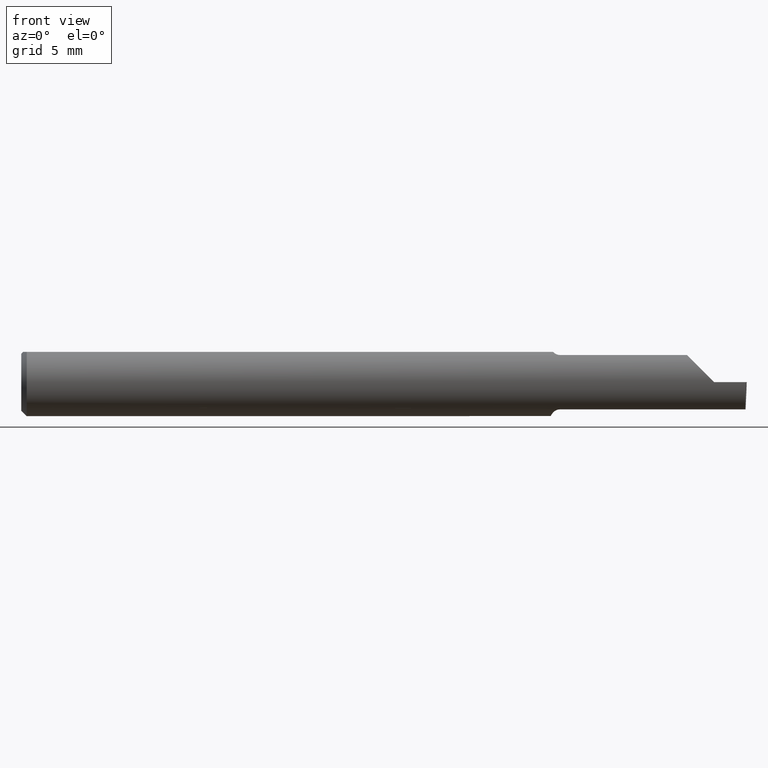
[diagram: clean part render]
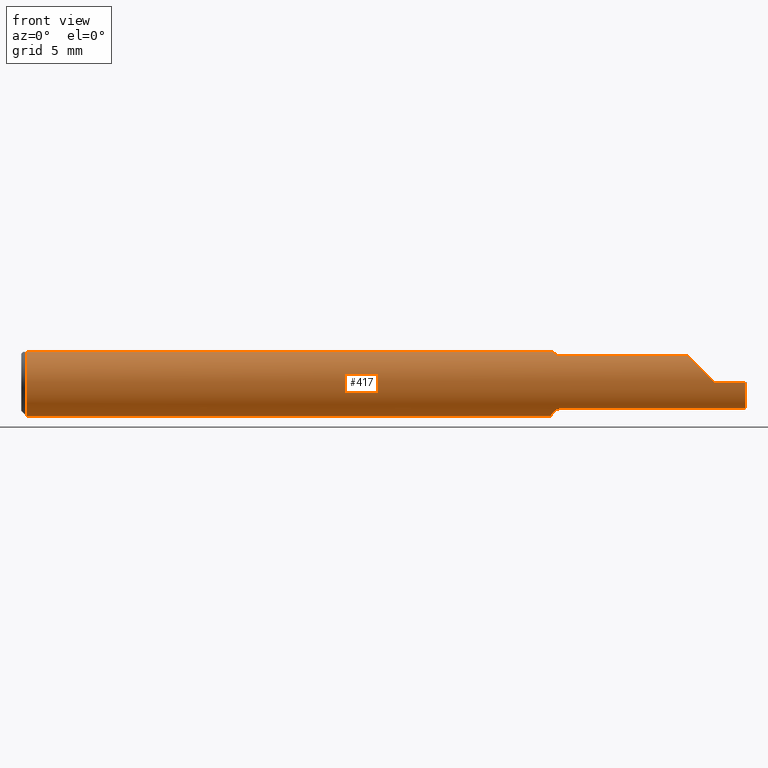
[diagram: same view with one face highlighted and labeled with its STEP entity id]
A machine part, front view. The second image highlights one B-rep face of the part: STEP entity #417.
In plain terms, the highlighted cylindrical surface (edge-blend (fillet) strip) has radius 2.3774 mm, axis along (-1, -0, -0).
Its self-contained STEP definition (entity closure, byte-faithful):
#11 = ORIENTED_EDGE ( 'NONE', *, *, #529, .T. ) ;
#13 = CARTESIAN_POINT ( 'NONE',  ( 1.476446782524424073, -0.05558685324519236498, -0.07531605361338915283 ) ) ;
#16 = CARTESIAN_POINT ( 'NONE',  ( 1.994172072281005237, -0.09355431490906530867, -0.09996576130738771271 ) ) ;
#18 = CARTESIAN_POINT ( 'NONE',  ( 1.880893035518783396, -0.09359999999999998876, 0.02910696448121669402 ) ) ;
#26 = CARTESIAN_POINT ( 'NONE',  ( 1.996788249052547259, -0.09359999022555408332, -4.277588313355801215E-05 ) ) ;
#27 = DIRECTION ( 'NONE',  ( 0.000000000000000000, 0.000000000000000000, -1.000000000000000000 ) ) ;
#36 = CARTESIAN_POINT ( 'NONE',  ( 1.459999999999999742, 0.000000000000000000, 0.000000000000000000 ) ) ;
#39 = ORIENTED_EDGE ( 'NONE', *, *, #58, .T. ) ;
#41 = DIRECTION ( 'NONE',  ( -1.000000000000000000, -0.000000000000000000, -0.000000000000000000 ) ) ;
#46 = CARTESIAN_POINT ( 'NONE',  ( 1.466129652885479251, -0.04209513035970094408, 0.08359999999999999376 ) ) ;
#49 = EDGE_LOOP ( 'NONE', ( #403, #678, #11, #39, #145, #701, #641, #569, #92, #541, #409, #363, #353, #490, #369 ) ) ;
#51 = VERTEX_POINT ( 'NONE', #735 ) ;
#58 = EDGE_CURVE ( 'NONE', #77, #149, #388, .T. ) ;
#74 = CARTESIAN_POINT ( 'NONE',  ( 1.474728336617688651, -0.05428341532129050961, -0.07627162539867091140 ) ) ;
#76 = CARTESIAN_POINT ( 'NONE',  ( 1.482653034764491728, -0.05810704225352129881, -0.07337936794867812307 ) ) ;
#77 = VERTEX_POINT ( 'NONE', #742 ) ;
#79 = CARTESIAN_POINT ( 'NONE',  ( 0.000000000000000000, 0.000000000000000000, 0.000000000000000000 ) ) ;
#85 = CARTESIAN_POINT ( 'NONE',  ( 1.459999999999999742, -0.006757276995305157297, -0.09335576686851604356 ) ) ;
#88 = DIRECTION ( 'NONE',  ( -1.000000000000000000, -0.000000000000000000, -0.000000000000000000 ) ) ;
#92 = ORIENTED_EDGE ( 'NONE', *, *, #511, .F. ) ;
#94 = CARTESIAN_POINT ( 'NONE',  ( 1.484999999999999876, -0.05810704225352111146, -0.07337936794867824797 ) ) ;
#111 = CARTESIAN_POINT ( 'NONE',  ( 1.996789369178486373, -0.09359999999634724399, 1.965990811775635199E-19 ) ) ;
#123 = VECTOR ( 'NONE', #155, 39.37007874015748143 ) ;
#136 = CARTESIAN_POINT ( 'NONE',  ( 1.468086474849918499, -0.04638796853538176834, -0.08140770120152256151 ) ) ;
#145 = ORIENTED_EDGE ( 'NONE', *, *, #427, .F. ) ;
#149 = VERTEX_POINT ( 'NONE', #265 ) ;
#153 = CARTESIAN_POINT ( 'NONE',  ( 2.999519565323743132E-32, -0.09359999999999998876, 2.449293598294717754E-16 ) ) ;
#155 = DIRECTION ( 'NONE',  ( 1.000000000000000000, 0.000000000000000000, 0.000000000000000000 ) ) ;
#156 = CARTESIAN_POINT ( 'NONE',  ( 0.01499999999999999944, 0.000000000000000000, -0.09359999999999998876 ) ) ;
#159 = DIRECTION ( 'NONE',  ( 1.000000000000000000, 0.000000000000000000, 0.000000000000000000 ) ) ;
#161 = VECTOR ( 'NONE', #159, 39.37007874015748143 ) ;
#163 = CARTESIAN_POINT ( 'NONE',  ( 1.466129652885479251, -0.04209513035970094408, 0.08359999999999999376 ) ) ;
#167 = CARTESIAN_POINT ( 'NONE',  ( 1.463953896433696000, -0.03733827064844358334, -0.08603332211978831356 ) ) ;
#177 = CARTESIAN_POINT ( 'NONE',  ( 1.484999999999999876, -0.05810704225352113922, 0.07337936794867823409 ) ) ;
#182 = CARTESIAN_POINT ( 'NONE',  ( 1.729749999999999677, -0.05810704225352113922, -0.07337936794867823409 ) ) ;
#191 = CARTESIAN_POINT ( 'NONE',  ( 0.01499999999999999598, 0.04209513035969836975, 0.08359999999999999376 ) ) ;
#193 = VERTEX_POINT ( 'NONE', #26 ) ;
#214 = CIRCLE ( 'NONE', #714, 0.09359999999999998876 ) ;
#222 = LINE ( 'NONE', #767, #161 ) ;
#230 = EDGE_CURVE ( 'NONE', #51, #551, #396, .T. ) ;
#232 = CARTESIAN_POINT ( 'NONE',  ( 1.474746577633804234, -0.05429945193459817521, 0.07626038032150797563 ) ) ;
#233 = VERTEX_POINT ( 'NONE', #94 ) ;
#235 = CARTESIAN_POINT ( 'NONE',  ( 1.466356684838558522, -0.04259999999999997816, 0.08334386600104415344 ) ) ;
#238 = CARTESIAN_POINT ( 'NONE',  ( 1.466204482410374155, -0.04226411763296330365, 0.08351490979309549034 ) ) ;
#240 = AXIS2_PLACEMENT_3D ( 'NONE', #650, #88, #336 ) ;
#241 = CARTESIAN_POINT ( 'NONE',  ( 1.466280153739604630, -0.04243240890922537339, 0.08342952773968856373 ) ) ;
#258 = DIRECTION ( 'NONE',  ( 0.02617296143184117893, -0.0004568507411563393905, 0.9996573249755575929 ) ) ;
#260 = CIRCLE ( 'NONE', #362, 0.09359999999999998876 ) ;
#263 = CARTESIAN_POINT ( 'NONE',  ( 1.995486889784650053, -0.05810704225352113922, -0.07337936794867823409 ) ) ;
#265 = CARTESIAN_POINT ( 'NONE',  ( 1.836620632051322310, -0.05810704225352133351, 0.07337936794867813695 ) ) ;
#273 = CARTESIAN_POINT ( 'NONE',  ( 1.466356684838558522, -0.04259999999999997816, 0.08334386600104415344 ) ) ;
#281 = LINE ( 'NONE', #153, #550 ) ;
#282 = VERTEX_POINT ( 'NONE', #536 ) ;
#295 = VERTEX_POINT ( 'NONE', #191 ) ;
#297 = CARTESIAN_POINT ( 'NONE',  ( 1.460436655799339123, -0.01945041057485635827, -0.09177104786119411051 ) ) ;
#309 = CARTESIAN_POINT ( 'NONE',  ( 1.466356684838558522, -0.04259999999999997122, -0.08334386600104412568 ) ) ;
#313 = AXIS2_PLACEMENT_3D ( 'NONE', #79, #326, #572 ) ;
#318 = LINE ( 'NONE', #16, #337 ) ;
#322 = VERTEX_POINT ( 'NONE', #309 ) ;
#326 = DIRECTION ( 'NONE',  ( -1.000000000000000000, -0.000000000000000000, -0.000000000000000000 ) ) ;
#336 = DIRECTION ( 'NONE',  ( 0.000000000000000000, 0.000000000000000000, 1.000000000000000000 ) ) ;
#337 = VECTOR ( 'NONE', #258, 39.37007874015748854 ) ;
#353 = ORIENTED_EDGE ( 'NONE', *, *, #673, .F. ) ;
#355 = CARTESIAN_POINT ( 'NONE',  ( 1.470259025420519228, -0.04992838138009422083, 0.07925011723318650669 ) ) ;
#358 = CARTESIAN_POINT ( 'NONE',  ( 1.466356684838558522, -0.04259999999999997122, -0.08334386600104412568 ) ) ;
#361 = CARTESIAN_POINT ( 'NONE',  ( 1.468098441794898346, -0.04641417426599063478, 0.08139430652501544738 ) ) ;
#362 = AXIS2_PLACEMENT_3D ( 'NONE', #644, #405, #582 ) ;
#363 = ORIENTED_EDGE ( 'NONE', *, *, #534, .F. ) ;
#369 = ORIENTED_EDGE ( 'NONE', *, *, #674, .F. ) ;
#388 =( BOUNDED_CURVE ( )  B_SPLINE_CURVE ( 3, ( #611, #18, #622, #428 ),
 .UNSPECIFIED., .F., .T. ) 
 B_SPLINE_CURVE_WITH_KNOTS ( ( 4, 4 ),
 ( 4.712388980384689674, 5.613420356061716632 ),
 .UNSPECIFIED. ) 
 CURVE ( )  GEOMETRIC_REPRESENTATION_ITEM ( )  RATIONAL_B_SPLINE_CURVE ( ( 1.000000000000000000, 0.9334817841311877640, 0.9334817841311877640, 1.000000000000000000 ) ) 
 REPRESENTATION_ITEM ( '' )  );
#391 = DIRECTION ( 'NONE',  ( 1.000000000000000000, 0.000000000000000000, 0.000000000000000000 ) ) ;
#392 = EDGE_CURVE ( 'NONE', #233, #322, #665, .T. ) ;
#395 = EDGE_CURVE ( 'NONE', #193, #613, #318, .T. ) ;
#396 = LINE ( 'NONE', #695, #123 ) ;
#403 = ORIENTED_EDGE ( 'NONE', *, *, #653, .T. ) ;
#405 = DIRECTION ( 'NONE',  ( -1.000000000000000000, -0.000000000000000000, -0.000000000000000000 ) ) ;
#406 = VERTEX_POINT ( 'NONE', #743 ) ;
#408 = CARTESIAN_POINT ( 'NONE',  ( 1.459999999999999742, -0.006757276995305157297, -0.09335576686851604356 ) ) ;
#409 = ORIENTED_EDGE ( 'NONE', *, *, #453, .F. ) ;
#412 = VERTEX_POINT ( 'NONE', #263 ) ;
#417 = ADVANCED_FACE ( 'NONE', ( #505 ), #684, .T. ) ;
#419 = DIRECTION ( 'NONE',  ( -1.000000000000000000, -0.000000000000000000, -0.000000000000000000 ) ) ;
#427 = EDGE_CURVE ( 'NONE', #406, #149, #222, .T. ) ;
#428 = CARTESIAN_POINT ( 'NONE',  ( 1.836620632051322310, -0.05810704225352133351, 0.07337936794867813695 ) ) ;
#434 = VERTEX_POINT ( 'NONE', #273 ) ;
#441 = VERTEX_POINT ( 'NONE', #85 ) ;
#450 = B_SPLINE_CURVE_WITH_KNOTS ( 'NONE', 3,
 ( #46, #238, #241, #235 ),
 .UNSPECIFIED., .F., .F.,
 ( 4, 4 ),
 ( 4.741820243502701581E-07, 1.584523690453573094E-05 ),
 .UNSPECIFIED. ) ;
#453 = EDGE_CURVE ( 'NONE', #282, #295, #460, .T. ) ;
#460 = LINE ( 'NONE', #516, #616 ) ;
#464 = DIRECTION ( 'NONE',  ( -1.000000000000000000, -0.000000000000000000, -0.000000000000000000 ) ) ;
#471 = VERTEX_POINT ( 'NONE', #156 ) ;
#473 = CARTESIAN_POINT ( 'NONE',  ( 1.996788249052547259, -0.09359999022555408332, -4.277588313355801215E-05 ) ) ;
#475 =( BOUNDED_CURVE ( )  B_SPLINE_CURVE ( 3, ( #527, #771, #711, #473 ),
 .UNSPECIFIED., .F., .F. ) 
 B_SPLINE_CURVE_WITH_KNOTS ( ( 4, 4 ),
 ( 0.08204942185700607460, 0.9826237902196914842 ),
 .UNSPECIFIED. ) 
 CURVE ( )  GEOMETRIC_REPRESENTATION_ITEM ( )  RATIONAL_B_SPLINE_CURVE ( ( 1.000000000000000000, 0.9335481000009943076, 0.9335481000009943076, 1.000000000000000000 ) ) 
 REPRESENTATION_ITEM ( '' )  );
#490 = ORIENTED_EDGE ( 'NONE', *, *, #392, .F. ) ;
#497 = CARTESIAN_POINT ( 'NONE',  ( 1.470264545693809488, -0.04993027844100268037, -0.07924826417278514612 ) ) ;
#505 = FACE_OUTER_BOUND ( 'NONE', #49, .T. ) ;
#511 = EDGE_CURVE ( 'NONE', #471, #51, #260, .T. ) ;
#516 = CARTESIAN_POINT ( 'NONE',  ( 0.000000000000000000, 0.04209513035969836975, 0.08359999999999999376 ) ) ;
#524 = B_SPLINE_CURVE_WITH_KNOTS ( 'NONE', 3,
 ( #358, #167, #598, #297, #539, #408 ),
 .UNSPECIFIED., .F., .F.,
 ( 4, 2, 4 ),
 ( 0.0007041963409106363411, 0.001193146413573859584, 0.001682096486237082827 ),
 .UNSPECIFIED. ) ;
#527 = CARTESIAN_POINT ( 'NONE',  ( 1.995486889784650053, -0.05810704225352113922, -0.07337936794867823409 ) ) ;
#529 = EDGE_CURVE ( 'NONE', #613, #77, #281, .T. ) ;
#534 = EDGE_CURVE ( 'NONE', #441, #282, #214, .T. ) ;
#536 = CARTESIAN_POINT ( 'NONE',  ( 1.459999999999999742, 0.04209513035969834893, 0.08359999999999999376 ) ) ;
#539 = CARTESIAN_POINT ( 'NONE',  ( 1.459999999999999520, -0.01308640439514264717, -0.09289765197734373148 ) ) ;
#541 = ORIENTED_EDGE ( 'NONE', *, *, #710, .F. ) ;
#550 = VECTOR ( 'NONE', #41, 39.37007874015748143 ) ;
#551 = VERTEX_POINT ( 'NONE', #163 ) ;
#552 = CIRCLE ( 'NONE', #240, 0.09359999999999998876 ) ;
#554 = CARTESIAN_POINT ( 'NONE',  ( 1.480389671955115949, -0.05750350940205799927, -0.07386306649500064270 ) ) ;
#569 = ORIENTED_EDGE ( 'NONE', *, *, #230, .F. ) ;
#572 = DIRECTION ( 'NONE',  ( 0.000000000000000000, 0.000000000000000000, 1.000000000000000000 ) ) ;
#582 = DIRECTION ( 'NONE',  ( 0.000000000000000000, 0.000000000000000000, 1.000000000000000000 ) ) ;
#598 = CARTESIAN_POINT ( 'NONE',  ( 1.462415450430337716, -0.03151229630690470518, -0.08835846806355296401 ) ) ;
#601 = CARTESIAN_POINT ( 'NONE',  ( 1.480389214148234434, -0.05750155061631040398, 0.07386444488392698848 ) ) ;
#603 = VECTOR ( 'NONE', #419, 39.37007874015748143 ) ;
#611 = CARTESIAN_POINT ( 'NONE',  ( 1.910000000000000142, -0.09359999999999998876, 1.102182119232621301E-17 ) ) ;
#613 = VERTEX_POINT ( 'NONE', #111 ) ;
#616 = VECTOR ( 'NONE', #464, 39.37007874015748143 ) ;
#621 = EDGE_CURVE ( 'NONE', #551, #434, #450, .T. ) ;
#622 = CARTESIAN_POINT ( 'NONE',  ( 1.854690286057537829, -0.08092595952420833516, 0.05530971394246224360 ) ) ;
#629 = CARTESIAN_POINT ( 'NONE',  ( 1.466356684838558522, -0.04259999999999997122, -0.08334386600104412568 ) ) ;
#640 = B_SPLINE_CURVE_WITH_KNOTS ( 'NONE', 3,
 ( #656, #361, #355, #232, #716, #601, #708, #177 ),
 .UNSPECIFIED., .F., .F.,
 ( 4, 2, 2, 4 ),
 ( 1.584523690453573094E-05, 0.0003656721978374746925, 0.0005405856783039505531, 0.0007154991587704265764 ),
 .UNSPECIFIED. ) ;
#641 = ORIENTED_EDGE ( 'NONE', *, *, #621, .F. ) ;
#644 = CARTESIAN_POINT ( 'NONE',  ( 0.01499999999999999944, 0.000000000000000000, 0.000000000000000000 ) ) ;
#650 = CARTESIAN_POINT ( 'NONE',  ( 0.01499999999999999944, 0.000000000000000000, 0.000000000000000000 ) ) ;
#653 = EDGE_CURVE ( 'NONE', #412, #193, #475, .T. ) ;
#656 = CARTESIAN_POINT ( 'NONE',  ( 1.466356684838558522, -0.04259999999999997816, 0.08334386600104415344 ) ) ;
#665 = B_SPLINE_CURVE_WITH_KNOTS ( 'NONE', 3,
 ( #676, #76, #554, #13, #74, #497, #136, #629 ),
 .UNSPECIFIED., .F., .F.,
 ( 4, 2, 2, 4 ),
 ( 1.968126669309311202E-07, 0.0001761966947278539039, 0.0003521965767887768836, 0.0007041963409106363411 ),
 .UNSPECIFIED. ) ;
#670 = EDGE_CURVE ( 'NONE', #434, #406, #640, .T. ) ;
#673 = EDGE_CURVE ( 'NONE', #322, #441, #524, .T. ) ;
#674 = EDGE_CURVE ( 'NONE', #412, #233, #780, .T. ) ;
#676 = CARTESIAN_POINT ( 'NONE',  ( 1.484999999999999876, -0.05810704225352111146, -0.07337936794867824797 ) ) ;
#678 = ORIENTED_EDGE ( 'NONE', *, *, #395, .T. ) ;
#684 = CYLINDRICAL_SURFACE ( 'NONE', #313, 0.09359999999999998876 ) ;
#695 = CARTESIAN_POINT ( 'NONE',  ( 0.000000000000000000, -0.04209513035969836975, 0.08359999999999999376 ) ) ;
#701 = ORIENTED_EDGE ( 'NONE', *, *, #670, .F. ) ;
#708 = CARTESIAN_POINT ( 'NONE',  ( 1.482655343791670521, -0.05810704225352127106, 0.07337936794867813695 ) ) ;
#710 = EDGE_CURVE ( 'NONE', #295, #471, #552, .T. ) ;
#711 = CARTESIAN_POINT ( 'NONE',  ( 1.996026586675631709, -0.09358669535931166128, -0.02913391928411205797 ) ) ;
#714 = AXIS2_PLACEMENT_3D ( 'NONE', #36, #391, #27 ) ;
#716 = CARTESIAN_POINT ( 'NONE',  ( 1.476469028275930517, -0.05559939362423894915, 0.07530665289274067475 ) ) ;
#735 = CARTESIAN_POINT ( 'NONE',  ( 0.01499999999999999944, -0.04209513035969836975, 0.08359999999999999376 ) ) ;
#742 = CARTESIAN_POINT ( 'NONE',  ( 1.910000000000000142, -0.09359999999999998876, 1.102182119232621301E-17 ) ) ;
#743 = CARTESIAN_POINT ( 'NONE',  ( 1.484999999999999876, -0.05810704225352113922, 0.07337936794867823409 ) ) ;
#767 = CARTESIAN_POINT ( 'NONE',  ( 1.729749999999999677, -0.05810704225352113922, 0.07337936794867823409 ) ) ;
#771 = CARTESIAN_POINT ( 'NONE',  ( 1.995561922431087876, -0.08091355869144020718, -0.05531953381055031843 ) ) ;
#780 = LINE ( 'NONE', #182, #603 ) ;